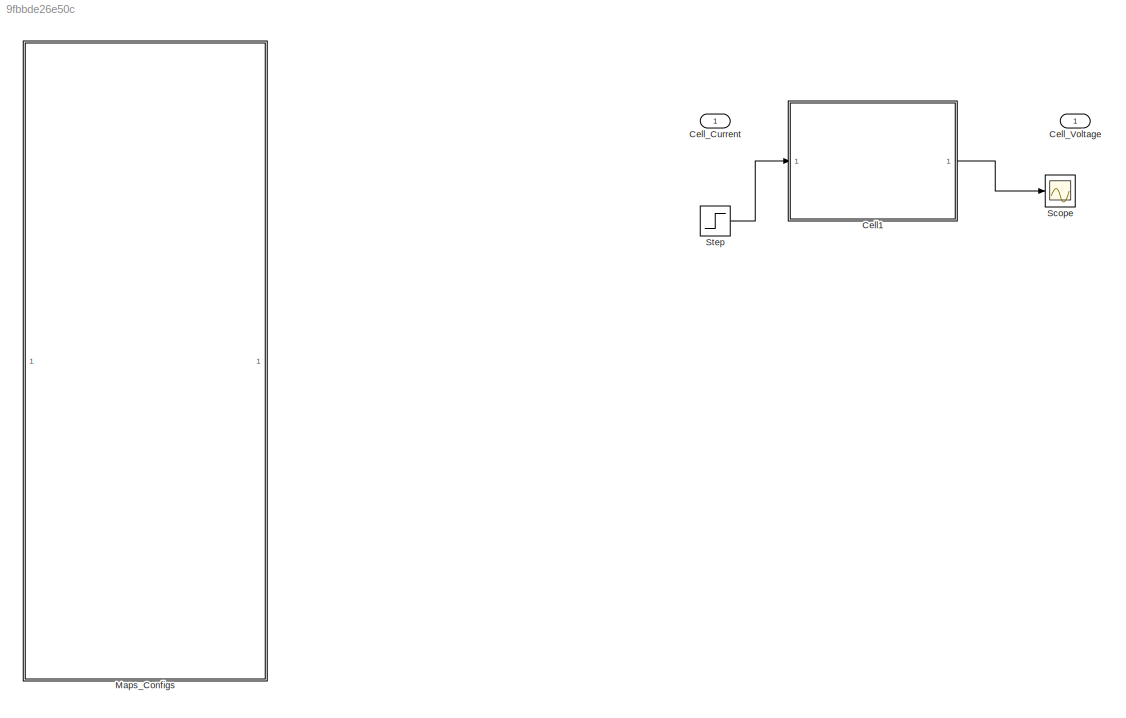
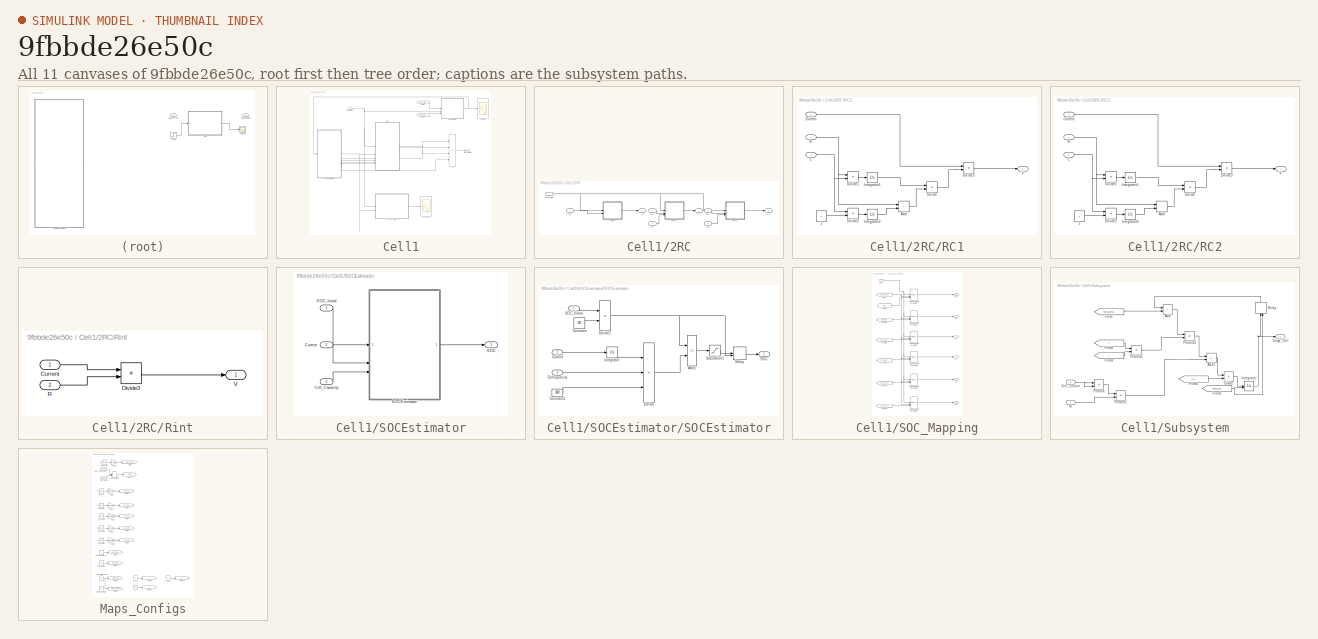
[diagram: thumbnail index - all 11 canvases of the model, root first then tree order]
MODEL slx_9fbbde26e50c
KIND model
CONFIG AbsTol = auto
CONFIG EnableMultiTasking = off
CONFIG FixedStep = 1e-04
CONFIG MaxStep = auto
CONFIG MinStep = auto
CONFIG RelTol = 1e-3
CONFIG SampleTimeConstraint = Unconstrained
CONFIG SolverName = VariableStepAuto
CONFIG StartTime = 0.0
CONFIG StopTime = 3600
BLOCK [SubSystem] Cell1
BLOCK [SubSystem] Cell1/2RC
BLOCK [Inport] Cell1/2RC/C1
  Port = 4
BLOCK [Inport] Cell1/2RC/C2
  Port = 6
BLOCK [Inport] Cell1/2RC/Current
BLOCK [Inport] Cell1/2RC/R1
  Port = 3
BLOCK [Inport] Cell1/2RC/R2
  Port = 5
BLOCK [SubSystem] Cell1/2RC/RC1
BLOCK [Constant] Cell1/2RC/RC1/2
BLOCK [Sum] Cell1/2RC/RC1/Add
  IconShape = rectangular
BLOCK [Inport] Cell1/2RC/RC1/C
  Port = 3
BLOCK [Inport] Cell1/2RC/RC1/Current
BLOCK [Product] Cell1/2RC/RC1/Divide
  Inputs = */
BLOCK [Product] Cell1/2RC/RC1/Divide1
  Inputs = */
BLOCK [Product] Cell1/2RC/RC1/Divide2
  Inputs = /*
BLOCK [Product] Cell1/2RC/RC1/Divide3
  Inputs = **
BLOCK [Integrator] Cell1/2RC/RC1/Integrator1
BLOCK [Integrator] Cell1/2RC/RC1/Integrator2
BLOCK [Inport] Cell1/2RC/RC1/R
  Port = 2
BLOCK [Outport] Cell1/2RC/RC1/V
BLOCK [SubSystem] Cell1/2RC/RC2
BLOCK [Constant] Cell1/2RC/RC2/2
BLOCK [Sum] Cell1/2RC/RC2/Add
  IconShape = rectangular
BLOCK [Inport] Cell1/2RC/RC2/C
  Port = 3
BLOCK [Inport] Cell1/2RC/RC2/Current
BLOCK [Product] Cell1/2RC/RC2/Divide
  Inputs = */
BLOCK [Product] Cell1/2RC/RC2/Divide1
  Inputs = */
BLOCK [Product] Cell1/2RC/RC2/Divide2
  Inputs = /*
BLOCK [Product] Cell1/2RC/RC2/Divide3
  Inputs = **
BLOCK [Integrator] Cell1/2RC/RC2/Integrator1
BLOCK [Integrator] Cell1/2RC/RC2/Integrator2
BLOCK [Inport] Cell1/2RC/RC2/R
  Port = 2
BLOCK [Outport] Cell1/2RC/RC2/V
BLOCK [Inport] Cell1/2RC/Ri
  Port = 2
BLOCK [SubSystem] Cell1/2RC/Rint
BLOCK [Inport] Cell1/2RC/Rint/Current
BLOCK [Product] Cell1/2RC/Rint/Divide3
  Inputs = **
BLOCK [Inport] Cell1/2RC/Rint/R
  Port = 2
BLOCK [Outport] Cell1/2RC/Rint/V
BLOCK [Outport] Cell1/2RC/V1
BLOCK [Outport] Cell1/2RC/V2
  Port = 2
BLOCK [Outport] Cell1/2RC/Vi
  Port = 3
BLOCK [Sum] Cell1/Add
  IconShape = rectangular
  Inputs = ---+
BLOCK [Inport] Cell1/Cell_Current
BLOCK [Outport] Cell1/Cell_Voltage
BLOCK [From] Cell1/From
  GotoTag = Cell_Capacity
  TagVisibility = global
BLOCK [From] Cell1/From1
  GotoTag = SOC_Iinitial
  TagVisibility = global
BLOCK [SubSystem] Cell1/SOCEstimator
  TreatAsAtomicUnit = on
BLOCK [Inport] Cell1/SOCEstimator/Cell_Capacity
  Port = 3
BLOCK [Inport] Cell1/SOCEstimator/Current
  Port = 2
BLOCK [Outport] Cell1/SOCEstimator/SOC
BLOCK [SubSystem] Cell1/SOCEstimator/SOCEstimator
  NameLocation = top
BLOCK [Sum] Cell1/SOCEstimator/SOCEstimator/Add1
  IconShape = rectangular
  Inputs = +-
BLOCK [Inport] Cell1/SOCEstimator/SOCEstimator/CellCapacity
  Port = 3
BLOCK [Constant] Cell1/SOCEstimator/SOCEstimator/Constant
  SampleTime = -1
  Value = 100
BLOCK [Constant] Cell1/SOCEstimator/SOCEstimator/Constant1
  SampleTime = -1
  Value = 3600
BLOCK [Inport] Cell1/SOCEstimator/SOCEstimator/Current
  Port = 2
BLOCK [Delay] Cell1/SOCEstimator/SOCEstimator/Delay
  DelayLength = 1
  InitialConditionSource = Input port
  InputPortMap = u0,p4
BLOCK [Product] Cell1/SOCEstimator/SOCEstimator/Divide
  Inputs = *//
BLOCK [Product] Cell1/SOCEstimator/SOCEstimator/Divide1
  Inputs = */
BLOCK [Integrator] Cell1/SOCEstimator/SOCEstimator/Integrator
BLOCK [Outport] Cell1/SOCEstimator/SOCEstimator/SOC
BLOCK [Inport] Cell1/SOCEstimator/SOCEstimator/SOC_Initial
BLOCK [Saturate] Cell1/SOCEstimator/SOCEstimator/Saturation1
  LowerLimit = 0
  UpperLimit = 1
BLOCK [Inport] Cell1/SOCEstimator/SOC_Initial
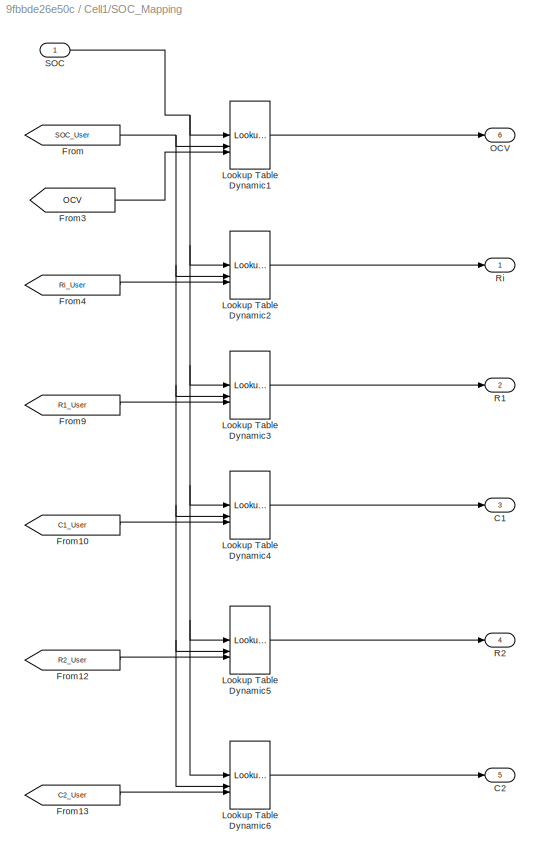
BLOCK [SubSystem] Cell1/SOC_Mapping
BLOCK [Outport] Cell1/SOC_Mapping/C1
  Port = 3
BLOCK [Outport] Cell1/SOC_Mapping/C2
  Port = 5
BLOCK [From] Cell1/SOC_Mapping/From
  GotoTag = SOC_User
  TagVisibility = global
BLOCK [From] Cell1/SOC_Mapping/From10
  GotoTag = C1_User
  TagVisibility = global
BLOCK [From] Cell1/SOC_Mapping/From12
  GotoTag = R2_User
  TagVisibility = global
BLOCK [From] Cell1/SOC_Mapping/From13
  GotoTag = C2_User
  TagVisibility = global
BLOCK [From] Cell1/SOC_Mapping/From3
  GotoTag = OCV
  TagVisibility = global
BLOCK [From] Cell1/SOC_Mapping/From4
  GotoTag = Ri_User
  TagVisibility = global
BLOCK [From] Cell1/SOC_Mapping/From9
  GotoTag = R1_User
  TagVisibility = global
BLOCK [Reference] Cell1/SOC_Mapping/Lookup Table Dynamic1  REF=simulink/Lookup
Tables/Lookup
Table
Dynamic
  SourceBlock = simulink/Lookup\nTables/Lookup\nTable\nDynamic
  SourceType = Lookup Table Dynamic
BLOCK [Reference] Cell1/SOC_Mapping/Lookup Table Dynamic2  REF=simulink/Lookup
Tables/Lookup
Table
Dynamic
  SourceBlock = simulink/Lookup\nTables/Lookup\nTable\nDynamic
  SourceType = Lookup Table Dynamic
BLOCK [Reference] Cell1/SOC_Mapping/Lookup Table Dynamic3  REF=simulink/Lookup
Tables/Lookup
Table
Dynamic
  SourceBlock = simulink/Lookup\nTables/Lookup\nTable\nDynamic
  SourceType = Lookup Table Dynamic
BLOCK [Reference] Cell1/SOC_Mapping/Lookup Table Dynamic4  REF=simulink/Lookup
Tables/Lookup
Table
Dynamic
  SourceBlock = simulink/Lookup\nTables/Lookup\nTable\nDynamic
  SourceType = Lookup Table Dynamic
BLOCK [Reference] Cell1/SOC_Mapping/Lookup Table Dynamic5  REF=simulink/Lookup
Tables/Lookup
Table
Dynamic
  SourceBlock = simulink/Lookup\nTables/Lookup\nTable\nDynamic
  SourceType = Lookup Table Dynamic
BLOCK [Reference] Cell1/SOC_Mapping/Lookup Table Dynamic6  REF=simulink/Lookup
Tables/Lookup
Table
Dynamic
  SourceBlock = simulink/Lookup\nTables/Lookup\nTable\nDynamic
  SourceType = Lookup Table Dynamic
BLOCK [Outport] Cell1/SOC_Mapping/OCV
  Port = 6
BLOCK [Outport] Cell1/SOC_Mapping/R1
  Port = 2
BLOCK [Outport] Cell1/SOC_Mapping/R2
  Port = 4
BLOCK [Outport] Cell1/SOC_Mapping/Ri
BLOCK [Inport] Cell1/SOC_Mapping/SOC
BLOCK [Scope] Cell1/Scope
  Floating = off
  NumInputPorts = 1
  ScopeSpecificationString = Simulink.scopes.TimeScopeBlockCfg('CurrentConfiguration', extmgr.ConfigurationSet(extmgr.Configuration('Core','General UI',true),extmgr.Configuration('Core','Source UI',true),extmgr.Configuration('Sources','WiredSimulink',true,'DataLoggingVariableName','ScopeData1'),extmgr.Configuration('Visuals','Time Domain',true,'SerializedDisplays',{struct('MinYLimReal','0.00803','MaxYLimReal','1.11022','YLabe...<+1403ch>
BLOCK [Scope] Cell1/Scope1
  Floating = off
  NumInputPorts = 1
  ScopeSpecificationString = Simulink.scopes.TimeScopeBlockCfg('CurrentConfiguration', extmgr.ConfigurationSet(extmgr.Configuration('Core','General UI',true),extmgr.Configuration('Core','Source UI',true),extmgr.Configuration('Sources','WiredSimulink',true,'DataLoggingVariableName','ScopeData2'),extmgr.Configuration('Visuals','Time Domain',true,'SerializedDisplays',{struct('MinYLimReal','23.91826','MaxYLimReal','34.73566','YLa...<+1408ch>
BLOCK [SubSystem] Cell1/Subsystem
BLOCK [Sum] Cell1/Subsystem/Add
  IconShape = rectangular
  Inputs = +-
BLOCK [Sum] Cell1/Subsystem/Add1
  IconShape = rectangular
  Inputs = -+
BLOCK [Inport] Cell1/Subsystem/Cell_Current
BLOCK [Delay] Cell1/Subsystem/Delay
  DelayLength = 1
  InitialConditionSource = Input port
  InputPortMap = u0,p4
  NameLocation = right
BLOCK [Product] Cell1/Subsystem/Divide
  Inputs = */
BLOCK [From] Cell1/Subsystem/From
  GotoTag = Temp_ambient
  TagVisibility = global
BLOCK [From] Cell1/Subsystem/From1
  GotoTag = h
  TagVisibility = global
BLOCK [From] Cell1/Subsystem/From2
  GotoTag = Temp_Iinitial
  TagVisibility = global
BLOCK [From] Cell1/Subsystem/From3
  TagVisibility = global
BLOCK [From] Cell1/Subsystem/From4
  GotoTag = Cp
  TagVisibility = global
BLOCK [Integrator] Cell1/Subsystem/Integrator
  InitialConditionSource = external
BLOCK [Product] Cell1/Subsystem/Product
BLOCK [Product] Cell1/Subsystem/Product1
BLOCK [Product] Cell1/Subsystem/Product2
BLOCK [Product] Cell1/Subsystem/Product3
BLOCK [Inport] Cell1/Subsystem/Ri
  Port = 2
BLOCK [Outport] Cell1/Subsystem/Temp_Cell
BLOCK [Inport] Cell_Current
BLOCK [Outport] Cell_Voltage
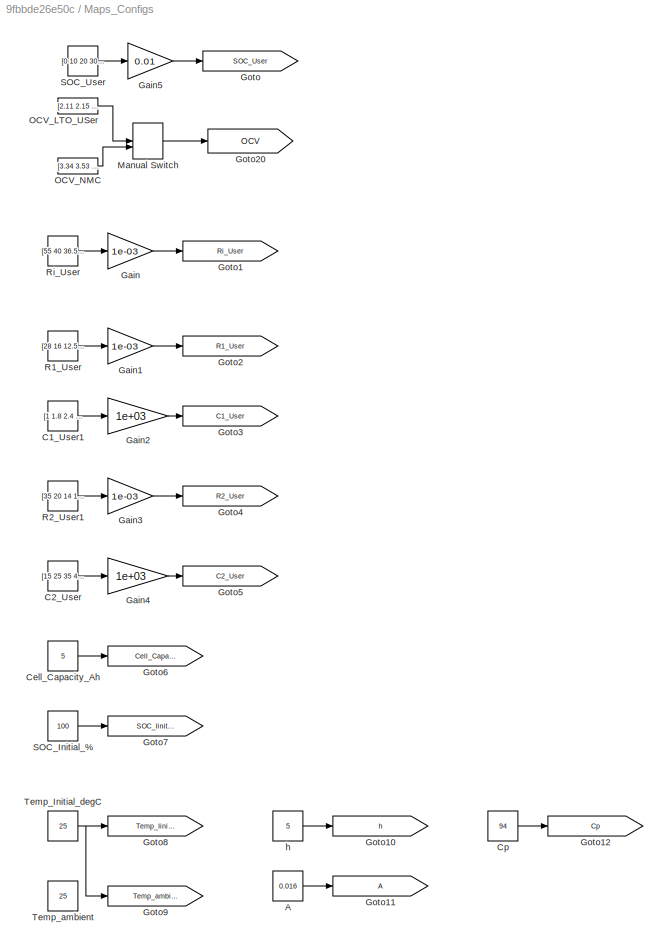
BLOCK [SubSystem] Maps_Configs
BLOCK [Constant] Maps_Configs/A
  Value = 0.016
BLOCK [Constant] Maps_Configs/C1_User1
  Value = [1 1.8 2.4 2.9 3.2 3.4 3.3 3.0 2.6 1.9 1.2]
BLOCK [Constant] Maps_Configs/C2_User
  Value = [15 25 35 45 50 52 51 47 38 28 18]
BLOCK [Constant] Maps_Configs/Cell_Capacity_Ah
  Value = 5
BLOCK [Constant] Maps_Configs/Cp
  Value = 94
BLOCK [Gain] Maps_Configs/Gain
  Gain = 1e-03
BLOCK [Gain] Maps_Configs/Gain1
  Gain = 1e-03
BLOCK [Gain] Maps_Configs/Gain2
  Gain = 1e+03
BLOCK [Gain] Maps_Configs/Gain3
  Gain = 1e-03
BLOCK [Gain] Maps_Configs/Gain4
  Gain = 1e+03
BLOCK [Gain] Maps_Configs/Gain5
  Gain = 0.01
BLOCK [Goto] Maps_Configs/Goto
  GotoTag = SOC_User
  TagVisibility = global
BLOCK [Goto] Maps_Configs/Goto1
  GotoTag = Ri_User
  TagVisibility = global
BLOCK [Goto] Maps_Configs/Goto10
  GotoTag = h
  TagVisibility = global
BLOCK [Goto] Maps_Configs/Goto11
  TagVisibility = global
BLOCK [Goto] Maps_Configs/Goto12
  GotoTag = Cp
  TagVisibility = global
BLOCK [Goto] Maps_Configs/Goto2
  GotoTag = R1_User
  TagVisibility = global
BLOCK [Goto] Maps_Configs/Goto20
  GotoTag = OCV
  TagVisibility = global
BLOCK [Goto] Maps_Configs/Goto3
  GotoTag = C1_User
  TagVisibility = global
BLOCK [Goto] Maps_Configs/Goto4
  GotoTag = R2_User
  TagVisibility = global
BLOCK [Goto] Maps_Configs/Goto5
  GotoTag = C2_User
  TagVisibility = global
BLOCK [Goto] Maps_Configs/Goto6
  GotoTag = Cell_Capacity
  TagVisibility = global
BLOCK [Goto] Maps_Configs/Goto7
  GotoTag = SOC_Iinitial
  TagVisibility = global
BLOCK [Goto] Maps_Configs/Goto8
  GotoTag = Temp_Iinitial
  TagVisibility = global
BLOCK [Goto] Maps_Configs/Goto9
  GotoTag = Temp_ambient
  TagVisibility = global
BLOCK [ManualSwitch] Maps_Configs/Manual Switch
  CurrentSetting = 0
BLOCK [Constant] Maps_Configs/OCV_LTO_USer
  SampleTime = -1
  Value = [2.11 2.15 2.18 2.19 2.20 2.23 2.28  2.32 2.35 2.42 2.69]
BLOCK [Constant] Maps_Configs/OCV_NMC
  Value = [3.34 3.53 3.59 3.63 3.66 3.70 3.75 3.83 3.92 4.03 4.13]
BLOCK [Constant] Maps_Configs/R1_User
  Value = [28 16 12.5 10 9 8.5 9.5 11 14 20 29]
BLOCK [Constant] Maps_Configs/R2_User1
  Value = [35 20 14 11 9.5 9 10.5 12.5 17 24 38]
BLOCK [Constant] Maps_Configs/Ri_User
  Value = [55 40 36.5 34 33 32.5 32.8 33.5 35 42 60]
BLOCK [Constant] Maps_Configs/SOC_Initial_%
  Value = 100
BLOCK [Constant] Maps_Configs/SOC_User
  Value = [0 10 20 30 40 50 60 70 80 90 100]
BLOCK [Constant] Maps_Configs/Temp_Initial_degC
  Value = 25
BLOCK [Constant] Maps_Configs/Temp_ambient
  Value = 25
BLOCK [Constant] Maps_Configs/h
  Value = 5
BLOCK [Scope] Scope
  Floating = off
  NumInputPorts = 1
  ScopeSpecificationString = Simulink.scopes.TimeScopeBlockCfg('CurrentConfiguration', extmgr.ConfigurationSet(extmgr.Configuration('Core','General UI',true),extmgr.Configuration('Core','Source UI',true),extmgr.Configuration('Sources','WiredSimulink',true),extmgr.Configuration('Visuals','Time Domain',true,'SerializedDisplays',{struct('MinYLimReal','3.11346','MaxYLimReal','4.24295','YLabelReal','','MinYLimMag','3.11346','MaxYL...<+1323ch>
BLOCK [Step] Step
  After = 4.5
  SampleTime = 0
LINE Cell1/2RC/C1:1 -> Cell1/2RC/RC1:3
LINE Cell1/2RC/C2:1 -> Cell1/2RC/RC2:3
NET Cell1/2RC/Current:1 -> Cell1/2RC/RC1:1, Cell1/2RC/RC2:1, Cell1/2RC/Rint:1
LINE Cell1/2RC/R1:1 -> Cell1/2RC/RC1:2
LINE Cell1/2RC/R2:1 -> Cell1/2RC/RC2:2
LINE Cell1/2RC/RC1/2:1 -> Cell1/2RC/RC1/Divide2:2
LINE Cell1/2RC/RC1/Add:1 -> Cell1/2RC/RC1/Divide:2
NET Cell1/2RC/RC1/C:1 -> Cell1/2RC/RC1/Divide1:2, Cell1/2RC/RC1/Divide2:1
LINE Cell1/2RC/RC1/Current:1 -> Cell1/2RC/RC1/Divide3:1
LINE Cell1/2RC/RC1/Divide1:1 -> Cell1/2RC/RC1/Integrator1:1
LINE Cell1/2RC/RC1/Divide2:1 -> Cell1/2RC/RC1/Integrator2:1
LINE Cell1/2RC/RC1/Divide3:1 -> Cell1/2RC/RC1/V:1
LINE Cell1/2RC/RC1/Divide:1 -> Cell1/2RC/RC1/Divide3:2
LINE Cell1/2RC/RC1/Integrator1:1 -> Cell1/2RC/RC1/Divide:1
LINE Cell1/2RC/RC1/Integrator2:1 -> Cell1/2RC/RC1/Add:2
NET Cell1/2RC/RC1/R:1 -> Cell1/2RC/RC1/Add:1, Cell1/2RC/RC1/Divide1:1
LINE Cell1/2RC/RC1:1 -> Cell1/2RC/V1:1
LINE Cell1/2RC/RC2/2:1 -> Cell1/2RC/RC2/Divide2:2
LINE Cell1/2RC/RC2/Add:1 -> Cell1/2RC/RC2/Divide:2
NET Cell1/2RC/RC2/C:1 -> Cell1/2RC/RC2/Divide1:2, Cell1/2RC/RC2/Divide2:1
LINE Cell1/2RC/RC2/Current:1 -> Cell1/2RC/RC2/Divide3:1
LINE Cell1/2RC/RC2/Divide1:1 -> Cell1/2RC/RC2/Integrator1:1
LINE Cell1/2RC/RC2/Divide2:1 -> Cell1/2RC/RC2/Integrator2:1
LINE Cell1/2RC/RC2/Divide3:1 -> Cell1/2RC/RC2/V:1
LINE Cell1/2RC/RC2/Divide:1 -> Cell1/2RC/RC2/Divide3:2
LINE Cell1/2RC/RC2/Integrator1:1 -> Cell1/2RC/RC2/Divide:1
LINE Cell1/2RC/RC2/Integrator2:1 -> Cell1/2RC/RC2/Add:2
NET Cell1/2RC/RC2/R:1 -> Cell1/2RC/RC2/Add:1, Cell1/2RC/RC2/Divide1:1
LINE Cell1/2RC/RC2:1 -> Cell1/2RC/V2:1
LINE Cell1/2RC/Ri:1 -> Cell1/2RC/Rint:2
LINE Cell1/2RC/Rint/Current:1 -> Cell1/2RC/Rint/Divide3:1
LINE Cell1/2RC/Rint/Divide3:1 -> Cell1/2RC/Rint/V:1
LINE Cell1/2RC/Rint/R:1 -> Cell1/2RC/Rint/Divide3:2
LINE Cell1/2RC/Rint:1 -> Cell1/2RC/Vi:1
LINE Cell1/2RC:1 -> Cell1/Add:1
LINE Cell1/2RC:2 -> Cell1/Add:2
LINE Cell1/2RC:3 -> Cell1/Add:3
LINE Cell1/Add:1 -> Cell1/Cell_Voltage:1
NET Cell1/Cell_Current:1 -> Cell1/2RC:1, Cell1/SOCEstimator:2, Cell1/Subsystem:1
LINE Cell1/From1:1 -> Cell1/SOCEstimator:1
LINE Cell1/From:1 -> Cell1/SOCEstimator:3
LINE Cell1/SOCEstimator/Cell_Capacity:1 -> Cell1/SOCEstimator/SOCEstimator:3
LINE Cell1/SOCEstimator/Current:1 -> Cell1/SOCEstimator/SOCEstimator:2
LINE Cell1/SOCEstimator/SOCEstimator/Add1:1 -> Cell1/SOCEstimator/SOCEstimator/Saturation1:1
LINE Cell1/SOCEstimator/SOCEstimator/CellCapacity:1 -> Cell1/SOCEstimator/SOCEstimator/Divide:2
LINE Cell1/SOCEstimator/SOCEstimator/Constant1:1 -> Cell1/SOCEstimator/SOCEstimator/Divide:3
LINE Cell1/SOCEstimator/SOCEstimator/Constant:1 -> Cell1/SOCEstimator/SOCEstimator/Divide1:2
LINE Cell1/SOCEstimator/SOCEstimator/Current:1 -> Cell1/SOCEstimator/SOCEstimator/Integrator:1
LINE Cell1/SOCEstimator/SOCEstimator/Delay:1 -> Cell1/SOCEstimator/SOCEstimator/SOC:1
NET Cell1/SOCEstimator/SOCEstimator/Divide1:1 -> Cell1/SOCEstimator/SOCEstimator/Add1:1, Cell1/SOCEstimator/SOCEstimator/Delay:2
LINE Cell1/SOCEstimator/SOCEstimator/Divide:1 -> Cell1/SOCEstimator/SOCEstimator/Add1:2
LINE Cell1/SOCEstimator/SOCEstimator/Integrator:1 -> Cell1/SOCEstimator/SOCEstimator/Divide:1
LINE Cell1/SOCEstimator/SOCEstimator/SOC_Initial:1 -> Cell1/SOCEstimator/SOCEstimator/Divide1:1
LINE Cell1/SOCEstimator/SOCEstimator/Saturation1:1 -> Cell1/SOCEstimator/SOCEstimator/Delay:1
LINE Cell1/SOCEstimator/SOCEstimator:1 -> Cell1/SOCEstimator/SOC:1
LINE Cell1/SOCEstimator/SOC_Initial:1 -> Cell1/SOCEstimator/SOCEstimator:1
NET Cell1/SOCEstimator:1 -> Cell1/SOC_Mapping:1, Cell1/Scope:1
LINE Cell1/SOC_Mapping/From10:1 -> Cell1/SOC_Mapping/Lookup Table Dynamic4:3
LINE Cell1/SOC_Mapping/From12:1 -> Cell1/SOC_Mapping/Lookup Table Dynamic5:3
LINE Cell1/SOC_Mapping/From13:1 -> Cell1/SOC_Mapping/Lookup Table Dynamic6:3
LINE Cell1/SOC_Mapping/From3:1 -> Cell1/SOC_Mapping/Lookup Table Dynamic1:3
LINE Cell1/SOC_Mapping/From4:1 -> Cell1/SOC_Mapping/Lookup Table Dynamic2:3
LINE Cell1/SOC_Mapping/From9:1 -> Cell1/SOC_Mapping/Lookup Table Dynamic3:3
NET Cell1/SOC_Mapping/From:1 -> Cell1/SOC_Mapping/Lookup Table Dynamic1:2, Cell1/SOC_Mapping/Lookup Table Dynamic2:2, Cell1/SOC_Mapping/Lookup Table Dynamic3:2, Cell1/SOC_Mapping/Lookup Table Dynamic4:2, Cell1/SOC_Mapping/Lookup Table Dynamic5:2, Cell1/SOC_Mapping/Lookup Table Dynamic6:2
LINE Cell1/SOC_Mapping/Lookup Table Dynamic1:1 -> Cell1/SOC_Mapping/OCV:1
LINE Cell1/SOC_Mapping/Lookup Table Dynamic2:1 -> Cell1/SOC_Mapping/Ri:1
LINE Cell1/SOC_Mapping/Lookup Table Dynamic3:1 -> Cell1/SOC_Mapping/R1:1
LINE Cell1/SOC_Mapping/Lookup Table Dynamic4:1 -> Cell1/SOC_Mapping/C1:1
LINE Cell1/SOC_Mapping/Lookup Table Dynamic5:1 -> Cell1/SOC_Mapping/R2:1
LINE Cell1/SOC_Mapping/Lookup Table Dynamic6:1 -> Cell1/SOC_Mapping/C2:1
NET Cell1/SOC_Mapping/SOC:1 -> Cell1/SOC_Mapping/Lookup Table Dynamic1:1, Cell1/SOC_Mapping/Lookup Table Dynamic2:1, Cell1/SOC_Mapping/Lookup Table Dynamic3:1, Cell1/SOC_Mapping/Lookup Table Dynamic4:1, Cell1/SOC_Mapping/Lookup Table Dynamic5:1, Cell1/SOC_Mapping/Lookup Table Dynamic6:1
NET Cell1/SOC_Mapping:1 -> Cell1/2RC:2, Cell1/Subsystem:2
LINE Cell1/SOC_Mapping:2 -> Cell1/2RC:3
LINE Cell1/SOC_Mapping:3 -> Cell1/2RC:4
LINE Cell1/SOC_Mapping:4 -> Cell1/2RC:5
LINE Cell1/SOC_Mapping:5 -> Cell1/2RC:6
LINE Cell1/SOC_Mapping:6 -> Cell1/Add:4
LINE Cell1/Subsystem/Add1:1 -> Cell1/Subsystem/Divide:1
LINE Cell1/Subsystem/Add:1 -> Cell1/Subsystem/Product3:1
NET Cell1/Subsystem/Cell_Current:1 -> Cell1/Subsystem/Product:1, Cell1/Subsystem/Product:2
LINE Cell1/Subsystem/Delay:1 -> Cell1/Subsystem/Add:1
LINE Cell1/Subsystem/Divide:1 -> Cell1/Subsystem/Integrator:1
LINE Cell1/Subsystem/From1:1 -> Cell1/Subsystem/Product2:1
NET Cell1/Subsystem/From2:1 -> Cell1/Subsystem/Delay:2, Cell1/Subsystem/Integrator:2
LINE Cell1/Subsystem/From3:1 -> Cell1/Subsystem/Product2:2
LINE Cell1/Subsystem/From4:1 -> Cell1/Subsystem/Divide:2
LINE Cell1/Subsystem/From:1 -> Cell1/Subsystem/Add:2
NET Cell1/Subsystem/Integrator:1 -> Cell1/Subsystem/Delay:1, Cell1/Subsystem/Temp_Cell:1
LINE Cell1/Subsystem/Product1:1 -> Cell1/Subsystem/Add1:2
LINE Cell1/Subsystem/Product2:1 -> Cell1/Subsystem/Product3:2
LINE Cell1/Subsystem/Product3:1 -> Cell1/Subsystem/Add1:1
LINE Cell1/Subsystem/Product:1 -> Cell1/Subsystem/Product1:1
LINE Cell1/Subsystem/Ri:1 -> Cell1/Subsystem/Product1:2
LINE Cell1/Subsystem:1 -> Cell1/Scope1:1
LINE Cell1:1 -> Scope:1
LINE Maps_Configs/A:1 -> Maps_Configs/Goto11:1
LINE Maps_Configs/C1_User1:1 -> Maps_Configs/Gain2:1
LINE Maps_Configs/C2_User:1 -> Maps_Configs/Gain4:1
LINE Maps_Configs/Cell_Capacity_Ah:1 -> Maps_Configs/Goto6:1
LINE Maps_Configs/Cp:1 -> Maps_Configs/Goto12:1
LINE Maps_Configs/Gain1:1 -> Maps_Configs/Goto2:1
LINE Maps_Configs/Gain2:1 -> Maps_Configs/Goto3:1
LINE Maps_Configs/Gain3:1 -> Maps_Configs/Goto4:1
LINE Maps_Configs/Gain4:1 -> Maps_Configs/Goto5:1
LINE Maps_Configs/Gain5:1 -> Maps_Configs/Goto:1
LINE Maps_Configs/Gain:1 -> Maps_Configs/Goto1:1
LINE Maps_Configs/Manual Switch:1 -> Maps_Configs/Goto20:1
LINE Maps_Configs/OCV_LTO_USer:1 -> Maps_Configs/Manual Switch:1
LINE Maps_Configs/OCV_NMC:1 -> Maps_Configs/Manual Switch:2
LINE Maps_Configs/R1_User:1 -> Maps_Configs/Gain1:1
LINE Maps_Configs/R2_User1:1 -> Maps_Configs/Gain3:1
LINE Maps_Configs/Ri_User:1 -> Maps_Configs/Gain:1
LINE Maps_Configs/SOC_Initial_%:1 -> Maps_Configs/Goto7:1
LINE Maps_Configs/SOC_User:1 -> Maps_Configs/Gain5:1
NET Maps_Configs/Temp_Initial_degC:1 -> Maps_Configs/Goto8:1, Maps_Configs/Goto9:1
LINE Maps_Configs/h:1 -> Maps_Configs/Goto10:1
LINE Step:1 -> Cell1:1
note: NET lines group one-source signal fan-out (src -> all destinations, sorted); 1:1 wires keep LINE
